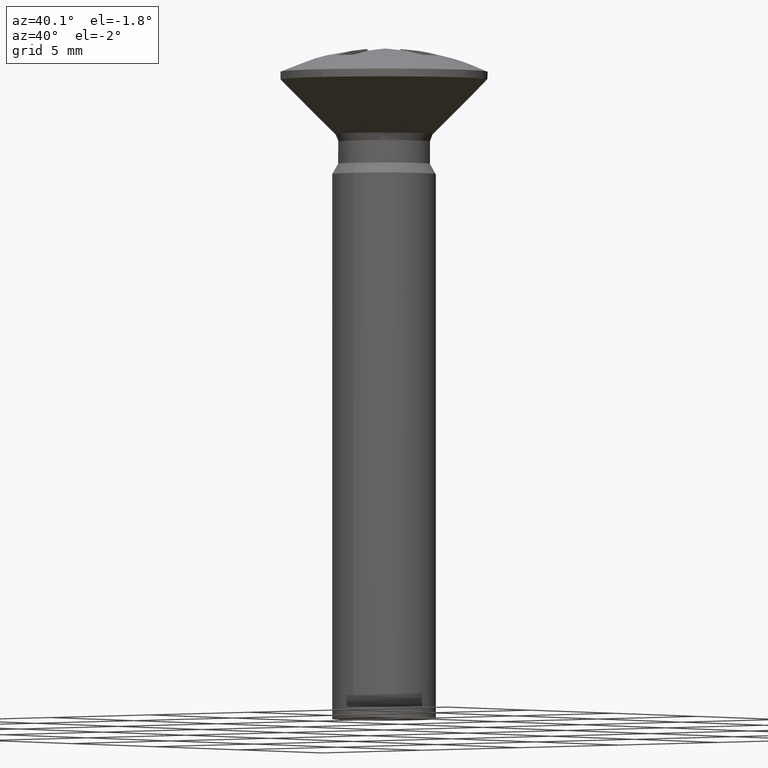
[diagram: clean part render]
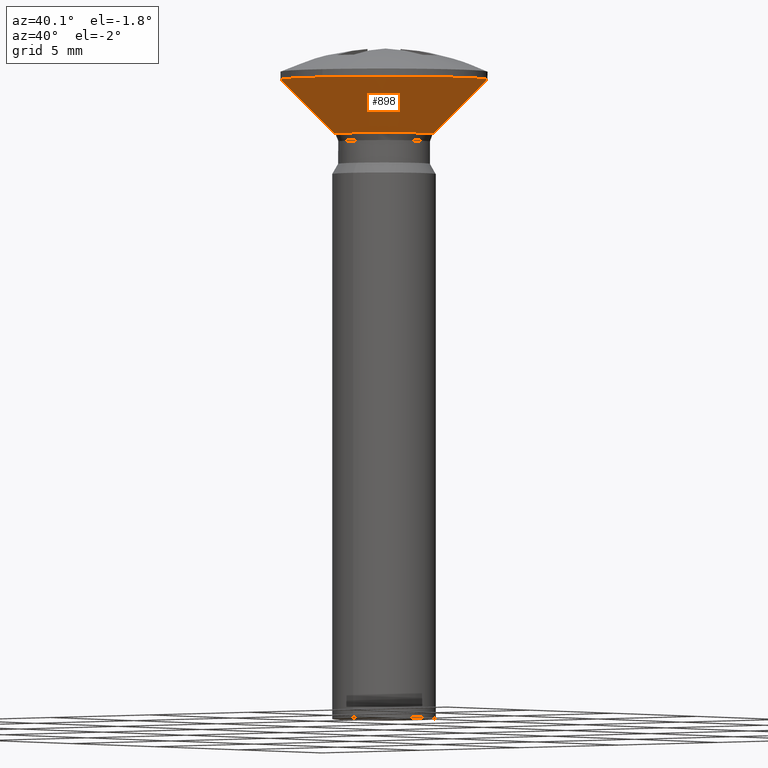
[diagram: same view with one face highlighted and labeled with its STEP entity id]
A machine part, auxiliary view. The second image highlights one B-rep face of the part: STEP entity #898.
In plain terms, the highlighted face is a freeform B-spline surface patch.
Its self-contained STEP definition (entity closure, byte-faithful):
#119=CARTESIAN_POINT('',(0.244187265558266,-3.992539615243847,-0.299999999999990));
#120=VERTEX_POINT('',#119);
#126=CARTESIAN_POINT('',(4.0,0.0,-0.299999999999990));
#127=VERTEX_POINT('',#126);
#128=CARTESIAN_POINT('',(4.0,0.0,-0.299999999999990));
#129=CARTESIAN_POINT('',(4.000000000000001,-3.762830775775668,-0.299999999999990));
#130=CARTESIAN_POINT('',(0.244187265558266,-3.992539615243847,-0.299999999999990));
#138=(BOUNDED_CURVE()B_SPLINE_CURVE(2,(#128,#129,#130),.UNSPECIFIED.,.F.,.U.)B_SPLINE_CURVE_WITH_KNOTS((3,3),(0.500000000000000,0.739333260120827),.UNSPECIFIED.)CURVE()GEOMETRIC_REPRESENTATION_ITEM()RATIONAL_B_SPLINE_CURVE((1.0,0.719603644296375,0.976072680085130))REPRESENTATION_ITEM(''));
#139=EDGE_CURVE('',#127,#120,#138,.T.);
#141=CARTESIAN_POINT('',(1.001520016257078,3.872590561506795,-0.299999999995604));
#142=VERTEX_POINT('',#141);
#143=CARTESIAN_POINT('',(1.001520016257078,3.872590561506795,-0.299999999995604));
#144=CARTESIAN_POINT('',(4.000000000000001,3.097130911304047,-0.299999999999990));
#145=CARTESIAN_POINT('',(4.0,0.0,-0.299999999999990));
#153=(BOUNDED_CURVE()B_SPLINE_CURVE(2,(#143,#144,#145),.UNSPECIFIED.,.F.,.U.)B_SPLINE_CURVE_WITH_KNOTS((3,3),(0.292726229713621,0.500000000000000),.UNSPECIFIED.)CURVE()GEOMETRIC_REPRESENTATION_ITEM()RATIONAL_B_SPLINE_CURVE((0.916996154471756,0.757163672980889,1.0))REPRESENTATION_ITEM(''));
#154=EDGE_CURVE('',#142,#127,#153,.T.);
#156=CARTESIAN_POINT('',(-1.678368449808747,3.630851049919546,-0.299999999998079));
#157=VERTEX_POINT('',#156);
#173=CARTESIAN_POINT('',(-4.0,0.0,-0.299999999999990));
#174=VERTEX_POINT('',#173);
#175=CARTESIAN_POINT('',(-4.0,0.0,-0.299999999999990));
#176=CARTESIAN_POINT('',(-4.000000000000000,2.557672036950856,-0.299999999999990));
#177=CARTESIAN_POINT('',(-1.678368449808747,3.630851049919546,-0.299999999998079));
#185=(BOUNDED_CURVE()B_SPLINE_CURVE(2,(#175,#176,#177),.UNSPECIFIED.,.F.,.U.)B_SPLINE_CURVE_WITH_KNOTS((3,3),(0.0,0.178730602232853),.UNSPECIFIED.)CURVE()GEOMETRIC_REPRESENTATION_ITEM()RATIONAL_B_SPLINE_CURVE((1.0,0.790604074446212,0.880611827927097))REPRESENTATION_ITEM(''));
#186=EDGE_CURVE('',#174,#157,#185,.T.);
#188=CARTESIAN_POINT('',(-3.744574315104923,-1.406471897570832,-0.299999999999990));
#189=VERTEX_POINT('',#188);
#190=CARTESIAN_POINT('',(-3.744574315104922,-1.406471897570832,-0.299999999999990));
#191=CARTESIAN_POINT('',(-4.000000000000001,-0.726429544272057,-0.299999999999990));
#192=CARTESIAN_POINT('',(-4.0,0.0,-0.299999999999990));
#200=(BOUNDED_CURVE()B_SPLINE_CURVE(2,(#190,#191,#192),.UNSPECIFIED.,.F.,.U.)B_SPLINE_CURVE_WITH_KNOTS((3,3),(0.940284170898526,1.0),.UNSPECIFIED.)CURVE()GEOMETRIC_REPRESENTATION_ITEM()RATIONAL_B_SPLINE_CURVE((0.893499554635297,0.930038554401421,1.0))REPRESENTATION_ITEM(''));
#201=EDGE_CURVE('',#189,#174,#200,.T.);
#241=CARTESIAN_POINT('',(0.244187265558266,-3.992539615243847,-0.299999999999990));
#242=CARTESIAN_POINT('',(0.122207597241167,-4.000000000000001,-0.299999999999990));
#243=CARTESIAN_POINT('',(0.0,-4.0,-0.299999999999990));
#244=CARTESIAN_POINT('',(-2.770438382770514,-4.000000000000001,-0.299999999999990));
#245=CARTESIAN_POINT('',(-3.744574315104922,-1.406471897570833,-0.299999999999990));
#253=(BOUNDED_CURVE()B_SPLINE_CURVE(2,(#241,#242,#243,#244,#245),.UNSPECIFIED.,.F.,.U.)B_SPLINE_CURVE_WITH_KNOTS((3,2,3),(0.739333260120827,0.750000000000000,0.940284170898527),.UNSPECIFIED.)CURVE()GEOMETRIC_REPRESENTATION_ITEM()RATIONAL_B_SPLINE_CURVE((0.976072680085130,0.987503136890172,1.0,0.777068226785125,0.893499554635298))REPRESENTATION_ITEM(''));
#254=EDGE_CURVE('',#120,#189,#253,.T.);
#776=CARTESIAN_POINT('',(-0.772877628223253,1.671983019137750,-2.458128579775922));
#777=CARTESIAN_POINT('',(-1.564848318532112,1.305892920289793,-2.458128579775923));
#778=CARTESIAN_POINT('',(-1.783302473686159,0.461193377920598,-2.458128579775923));
#779=CARTESIAN_POINT('',(-2.244495851606756,-1.322109095765561,-2.458128579775922));
#780=CARTESIAN_POINT('',(-0.461193377920598,-1.783302473686159,-2.458128579775923));
#781=CARTESIAN_POINT('',(1.322109095765561,-2.244495851606756,-2.458128579775922));
#782=CARTESIAN_POINT('',(1.783302473686159,-0.461193377920598,-2.458128579775923));
#783=CARTESIAN_POINT('',(2.244495851606756,1.322109095765561,-2.458128579775922));
#784=CARTESIAN_POINT('',(0.461193377920598,1.783302473686159,-2.458128579775923));
#785=CARTESIAN_POINT('',(-1.701005720325820,3.679822750697364,-0.246046785505591));
#786=CARTESIAN_POINT('',(-3.444032850820816,2.874104834231629,-0.246046785505591));
#787=CARTESIAN_POINT('',(-3.924822763708088,1.015028182175195,-0.246046785505592));
#788=CARTESIAN_POINT('',(-4.939850945883284,-2.909794581532893,-0.246046785505592));
#789=CARTESIAN_POINT('',(-1.015028182175195,-3.924822763708088,-0.246046785505591));
#790=CARTESIAN_POINT('',(2.909794581532893,-4.939850945883284,-0.246046785505592));
#791=CARTESIAN_POINT('',(3.924822763708088,-1.015028182175195,-0.246046785505592));
#792=CARTESIAN_POINT('',(4.939850945883284,2.909794581532893,-0.246046785505592));
#793=CARTESIAN_POINT('',(1.015028182175195,3.924822763708088,-0.246046785505592));
#801=(BOUNDED_SURFACE()B_SPLINE_SURFACE(2,1,((#776,#785),(#777,#786),(#778,#787),(#779,#788),(#780,#789),(#781,#790),(#782,#791),(#783,#792),(#784,#793)),.UNSPECIFIED.,.F.,.F.,.U.)B_SPLINE_SURFACE_WITH_KNOTS((3,2,2,2,3),(2,2),(0.0,3.761411009924188,10.478216384788810,17.195021759653429,23.911827134518049),(0.0,3.128281957803930),.UNSPECIFIED.)GEOMETRIC_REPRESENTATION_ITEM()RATIONAL_B_SPLINE_SURFACE(((0.855662221768731,0.855662221768731),(0.835979797464467,0.835979797464467),(1.0,1.0),(0.707106781186548,0.707106781186548),(1.0,1.0),(0.707106781186548,0.707106781186548),(1.0,1.0),(0.707106781186548,0.707106781186548),(1.0,1.0)))REPRESENTATION_ITEM('')SURFACE());
#802=CARTESIAN_POINT('',(-1.492776425568936,1.166687532422747,-2.405491297281149));
#803=VERTEX_POINT('',#802);
#804=CARTESIAN_POINT('',(-0.794962770304712,1.719760288314668,-2.405491297183358));
#805=VERTEX_POINT('',#804);
#806=CARTESIAN_POINT('',(-1.492776425568936,1.166687532422747,-2.405491297281149));
#807=CARTESIAN_POINT('',(-1.210723694299725,1.527573936384510,-2.405491297219026));
#808=CARTESIAN_POINT('',(-0.794962770304712,1.719760288314667,-2.405491297183358));
#816=(BOUNDED_CURVE()B_SPLINE_CURVE(2,(#806,#807,#808),.UNSPECIFIED.,.F.,.U.)B_SPLINE_CURVE_WITH_KNOTS((3,3),(0.106567917886700,0.178730602229135),.UNSPECIFIED.)CURVE()GEOMETRIC_REPRESENTATION_ITEM()RATIONAL_B_SPLINE_CURVE((0.856737647416813,0.844271094880326,0.880611827923353))REPRESENTATION_ITEM(''));
#817=EDGE_CURVE('',#803,#805,#816,.T.);
#818=ORIENTED_EDGE('',*,*,#817,.F.);
#819=CARTESIAN_POINT('',(-1.894608470248300,0.0,-2.405491297155845));
#820=VERTEX_POINT('',#819);
#821=CARTESIAN_POINT('',(-1.894608470248300,0.0,-2.405491297155845));
#822=CARTESIAN_POINT('',(-1.894608470248300,0.652543525211773,-2.405491297155845));
#823=CARTESIAN_POINT('',(-1.492776425568936,1.166687532422747,-2.405491297281149));
#831=(BOUNDED_CURVE()B_SPLINE_CURVE(2,(#821,#822,#823),.UNSPECIFIED.,.F.,.U.)B_SPLINE_CURVE_WITH_KNOTS((3,3),(0.0,0.106567917886700),.UNSPECIFIED.)CURVE()GEOMETRIC_REPRESENTATION_ITEM()RATIONAL_B_SPLINE_CURVE((1.0,0.875147918031667,0.856737647416813))REPRESENTATION_ITEM(''));
#832=EDGE_CURVE('',#820,#803,#831,.T.);
#833=ORIENTED_EDGE('',*,*,#832,.F.);
#834=CARTESIAN_POINT('',(-1.331246584265472,-1.348081520786637,-2.405491297342363));
#835=VERTEX_POINT('',#834);
#836=CARTESIAN_POINT('',(-1.331246584265472,-1.348081520786638,-2.405491297342364));
#837=CARTESIAN_POINT('',(-1.894608470248301,-0.791754937794001,-2.405491297155845));
#838=CARTESIAN_POINT('',(-1.894608470248300,0.0,-2.405491297155845));
#846=(BOUNDED_CURVE()B_SPLINE_CURVE(2,(#836,#837,#838),.UNSPECIFIED.,.F.,.U.)B_SPLINE_CURVE_WITH_KNOTS((3,3),(0.874051937432150,1.0),.UNSPECIFIED.)CURVE()GEOMETRIC_REPRESENTATION_ITEM()RATIONAL_B_SPLINE_CURVE((0.853561814883002,0.852442666204737,1.0))REPRESENTATION_ITEM(''));
#847=EDGE_CURVE('',#835,#820,#846,.T.);
#848=ORIENTED_EDGE('',*,*,#847,.F.);
#849=CARTESIAN_POINT('',(1.894608470248300,0.0,-2.405491297155845));
#850=VERTEX_POINT('',#849);
#851=CARTESIAN_POINT('',(1.894608470248300,0.0,-2.405491297155845));
#852=CARTESIAN_POINT('',(1.894608470248300,-1.894608470248300,-2.405491297155846));
#853=CARTESIAN_POINT('',(0.0,-1.894608470248300,-2.405491297155845));
#854=CARTESIAN_POINT('',(-0.777808258471579,-1.894608470248300,-2.405491297155845));
#855=CARTESIAN_POINT('',(-1.331246584265472,-1.348081520786638,-2.405491297342364));
#863=(BOUNDED_CURVE()B_SPLINE_CURVE(2,(#851,#852,#853,#854,#855),.UNSPECIFIED.,.F.,.U.)B_SPLINE_CURVE_WITH_KNOTS((3,2,3),(0.500000000000000,0.750000000000000,0.874051937432149),.UNSPECIFIED.)CURVE()GEOMETRIC_REPRESENTATION_ITEM()RATIONAL_B_SPLINE_CURVE((1.0,0.707106781186547,1.0,0.854664114981811,0.853561814883002))REPRESENTATION_ITEM(''));
#864=EDGE_CURVE('',#850,#835,#863,.T.);
#865=ORIENTED_EDGE('',*,*,#864,.F.);
#866=CARTESIAN_POINT('',(0.474370223731517,1.834258716100270,-2.405493701140519));
#867=VERTEX_POINT('',#866);
#868=CARTESIAN_POINT('',(0.474370223731517,1.834258716100271,-2.405493701140519));
#869=CARTESIAN_POINT('',(1.894608169308452,1.466962484174385,-2.405492499148182));
#870=CARTESIAN_POINT('',(1.894608470248300,0.0,-2.405491297155845));
#878=(BOUNDED_CURVE()B_SPLINE_CURVE(2,(#868,#869,#870),.UNSPECIFIED.,.F.,.U.)B_SPLINE_CURVE_WITH_KNOTS((3,3),(0.292726119165935,0.500000000000000),.UNSPECIFIED.)CURVE()GEOMETRIC_REPRESENTATION_ITEM()RATIONAL_B_SPLINE_CURVE((0.916996324962435,0.757163543466219,1.0))REPRESENTATION_ITEM(''));
#879=EDGE_CURVE('',#867,#850,#878,.T.);
#880=ORIENTED_EDGE('',*,*,#879,.F.);
#881=CARTESIAN_POINT('',(0.474370223731517,1.834258716100270,-2.405493701140519));
#882=CARTESIAN_POINT('',(1.001520016257078,3.872590561506795,-0.299999999995604));
#883=QUASI_UNIFORM_CURVE('',1,(#881,#882),.UNSPECIFIED.,.F.,.U.);
#884=EDGE_CURVE('',#867,#142,#883,.T.);
#885=ORIENTED_EDGE('',*,*,#884,.T.);
#886=ORIENTED_EDGE('',*,*,#154,.T.);
#887=ORIENTED_EDGE('',*,*,#139,.T.);
#888=ORIENTED_EDGE('',*,*,#254,.T.);
#889=ORIENTED_EDGE('',*,*,#201,.T.);
#890=ORIENTED_EDGE('',*,*,#186,.T.);
#891=CARTESIAN_POINT('',(-0.794962770304712,1.719760288314668,-2.405491297183358));
#892=CARTESIAN_POINT('',(-1.678368449808747,3.630851049919546,-0.299999999998079));
#893=QUASI_UNIFORM_CURVE('',1,(#891,#892),.UNSPECIFIED.,.F.,.U.);
#894=EDGE_CURVE('',#805,#157,#893,.T.);
#895=ORIENTED_EDGE('',*,*,#894,.F.);
#896=EDGE_LOOP('',(#818,#833,#848,#865,#880,#885,#886,#887,#888,#889,#890,#895));
#897=FACE_OUTER_BOUND('',#896,.T.);
#898=ADVANCED_FACE('',(#897),#801,.T.);